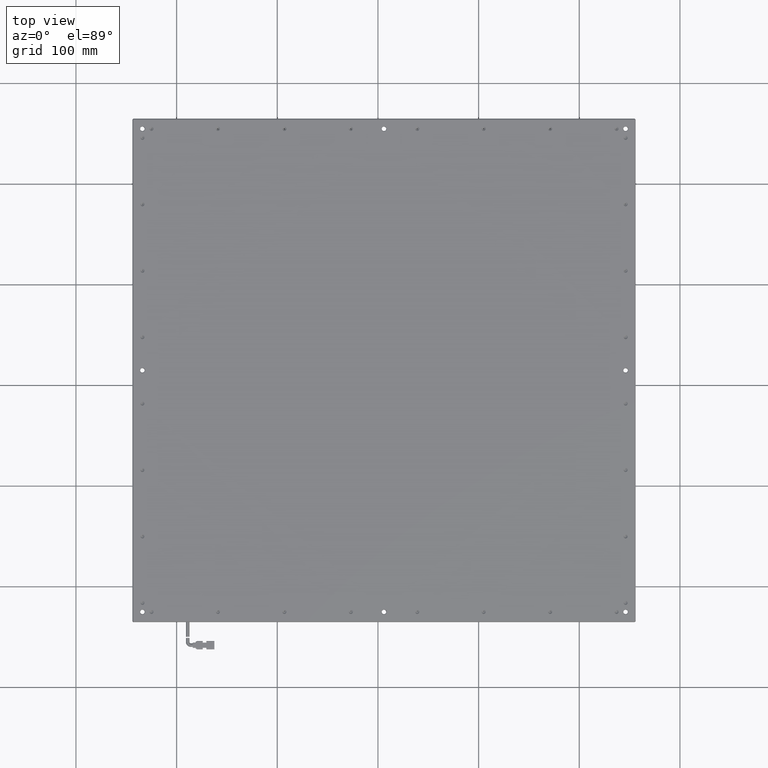
[diagram: clean part render]
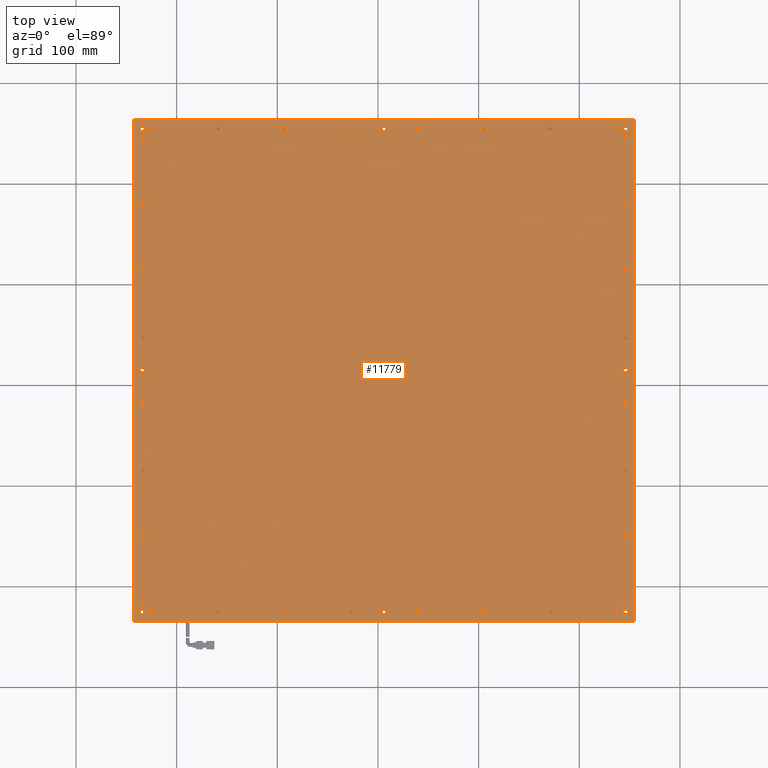
[diagram: same view with one face highlighted and labeled with its STEP entity id]
A machine part, top view. The second image highlights one B-rep face of the part: STEP entity #11779.
In plain terms, the highlighted planar face has unit normal (0, 0, -1).
Its self-contained STEP definition (entity closure, byte-faithful):
#12 = FACE_BOUND ( 'NONE', #7699, .T. ) ;
#28 = CARTESIAN_POINT ( 'NONE',  ( -233.9711023082942300, -84.30258215962435000, 9.000000000009549700 ) ) ;
#61 = EDGE_LOOP ( 'NONE', ( #15893, #22353 ) ) ;
#87 = ORIENTED_EDGE ( 'NONE', *, *, #19572, .T. ) ;
#115 = AXIS2_PLACEMENT_3D ( 'NONE', #14652, #2976, #16590 ) ;
#126 = ORIENTED_EDGE ( 'NONE', *, *, #25110, .T. ) ;
#152 = VERTEX_POINT ( 'NONE', #16185 ) ;
#180 = EDGE_CURVE ( 'NONE', #19854, #22678, #726, .T. ) ;
#212 = CARTESIAN_POINT ( 'NONE',  ( 3.278897691770726700, 254.6974178403756400, 8.999999999952706300 ) ) ;
#213 = CARTESIAN_POINT ( 'NONE',  ( 246.0288976917057700, 254.6974178403756400, 9.000000000009549700 ) ) ;
#276 = CARTESIAN_POINT ( 'NONE',  ( 256.0288976917057700, -234.3025821596243600, 9.000000000000000000 ) ) ;
#369 = CIRCLE ( 'NONE', #7320, 2.000000000018709000 ) ;
#383 = CIRCLE ( 'NONE', #16319, 2.000000000000390400 ) ;
#449 = VERTEX_POINT ( 'NONE', #19651 ) ;
#476 = EDGE_CURVE ( 'NONE', #19554, #686, #9968, .T. ) ;
#517 = ORIENTED_EDGE ( 'NONE', *, *, #23402, .T. ) ;
#553 = EDGE_CURVE ( 'NONE', #3909, #18821, #21876, .T. ) ;
#586 = VERTEX_POINT ( 'NONE', #3933 ) ;
#588 = DIRECTION ( 'NONE',  ( 1.000000000000000000, 0.0000000000000000000, 0.0000000000000000000 ) ) ;
#664 = EDGE_CURVE ( 'NONE', #19268, #15333, #10319, .T. ) ;
#676 = CIRCLE ( 'NONE', #9331, 1.999999999994006600 ) ;
#686 = VERTEX_POINT ( 'NONE', #23871 ) ;
#712 = EDGE_LOOP ( 'NONE', ( #15051, #16941 ) ) ;
#726 = CIRCLE ( 'NONE', #1712, 2.000000000055846000 ) ;
#759 = ORIENTED_EDGE ( 'NONE', *, *, #2359, .T. ) ;
#780 = CARTESIAN_POINT ( 'NONE',  ( 243.2788976917617800, 14.69741784037564800, 9.000000000009549700 ) ) ;
#803 = DIRECTION ( 'NONE',  ( -0.0000000000000000000, 0.0000000000000000000, -1.000000000000000000 ) ) ;
#828 = CIRCLE ( 'NONE', #24143, 2.000000000000390400 ) ;
#840 = EDGE_CURVE ( 'NONE', #3242, #23418, #10029, .T. ) ;
#892 = CARTESIAN_POINT ( 'NONE',  ( -222.9711023082792800, 254.6974178403756400, 9.000000000009549700 ) ) ;
#917 = FACE_BOUND ( 'NONE', #21830, .T. ) ;
#953 = CARTESIAN_POINT ( 'NONE',  ( 255.0288976917057900, 264.6974178403756400, 9.000000000000000000 ) ) ;
#1017 = DIRECTION ( 'NONE',  ( 1.000000000000000000, 0.0000000000000000000, 0.0000000000000000000 ) ) ;
#1031 = CARTESIAN_POINT ( 'NONE',  ( -231.9711023082938400, 47.69741784037565000, 9.000000000009549700 ) ) ;
#1189 = DIRECTION ( 'NONE',  ( 0.0000000000000000000, 1.000000000000000000, 0.0000000000000000000 ) ) ;
#1216 = CARTESIAN_POINT ( 'NONE',  ( 246.0288976917056200, 113.6974178403756500, 9.000000000009549700 ) ) ;
#1256 = CARTESIAN_POINT ( 'NONE',  ( -92.97110230829422100, 254.6974178403756400, 9.000000000009549700 ) ) ;
#1321 = EDGE_CURVE ( 'NONE', #4982, #4235, #8415, .T. ) ;
#1330 = CIRCLE ( 'NONE', #11755, 2.749999999943991500 ) ;
#1342 = AXIS2_PLACEMENT_3D ( 'NONE', #4769, #6706, #4006 ) ;
#1365 = VERTEX_POINT ( 'NONE', #1031 ) ;
#1386 = EDGE_CURVE ( 'NONE', #18964, #2593, #22817, .T. ) ;
#1440 = CARTESIAN_POINT ( 'NONE',  ( -224.9711023082942300, -225.3025821596243400, 9.000000000009549700 ) ) ;
#1479 = EDGE_CURVE ( 'NONE', #23206, #22562, #18490, .T. ) ;
#1489 = DIRECTION ( 'NONE',  ( 1.000000000000000000, 0.0000000000000000000, 0.0000000000000000000 ) ) ;
#1517 = CIRCLE ( 'NONE', #7662, 2.000000000018709000 ) ;
#1546 = EDGE_CURVE ( 'NONE', #586, #24184, #23988, .T. ) ;
#1548 = FACE_BOUND ( 'NONE', #6016, .T. ) ;
#1581 = DIRECTION ( 'NONE',  ( -0.0000000000000000000, 0.0000000000000000000, -1.000000000000000000 ) ) ;
#1587 = ORIENTED_EDGE ( 'NONE', *, *, #10608, .T. ) ;
#1605 = CARTESIAN_POINT ( 'NONE',  ( -222.9711023082792800, -225.3025821596243400, 9.000000000009549700 ) ) ;
#1611 = ORIENTED_EDGE ( 'NONE', *, *, #7985, .T. ) ;
#1672 = EDGE_CURVE ( 'NONE', #12902, #14408, #24277, .T. ) ;
#1709 = CARTESIAN_POINT ( 'NONE',  ( 37.02889769168085400, -225.3025821596243400, 9.000000000009549700 ) ) ;
#1712 = AXIS2_PLACEMENT_3D ( 'NONE', #16866, #17026, #16931 ) ;
#1719 = DIRECTION ( 'NONE',  ( 1.000000000000000000, 0.0000000000000000000, 0.0000000000000000000 ) ) ;
#1728 = CIRCLE ( 'NONE', #16437, 2.000000000018709000 ) ;
#1736 = CARTESIAN_POINT ( 'NONE',  ( -242.9711023082942600, 263.6974178403756400, 9.000000000000000000 ) ) ;
#1755 = EDGE_CURVE ( 'NONE', #10141, #2763, #6860, .T. ) ;
#1766 = CARTESIAN_POINT ( 'NONE',  ( 105.0288976917057800, -225.3025821596243400, 9.000000000009549700 ) ) ;
#1824 = CARTESIAN_POINT ( 'NONE',  ( 248.0288976917243500, 179.6974178403756600, 9.000000000009549700 ) ) ;
#1844 = ORIENTED_EDGE ( 'NONE', *, *, #476, .T. ) ;
#1848 = VERTEX_POINT ( 'NONE', #15944 ) ;
#1854 = EDGE_CURVE ( 'NONE', #23732, #19329, #24593, .T. ) ;
#1857 = CARTESIAN_POINT ( 'NONE',  ( 248.0288976917243500, -216.3025821596243600, 9.000000000009549700 ) ) ;
#1885 = EDGE_LOOP ( 'NONE', ( #10165, #3464 ) ) ;
#1927 = CARTESIAN_POINT ( 'NONE',  ( -233.9711023082943800, -225.3025821596243400, 9.000000000066393100 ) ) ;
#1998 = CARTESIAN_POINT ( 'NONE',  ( -156.9711023083052100, 254.6974178403756400, 9.000000000009549700 ) ) ;
#2009 = VERTEX_POINT ( 'NONE', #7878 ) ;
#2049 = DIRECTION ( 'NONE',  ( 1.000000000000000000, 0.0000000000000000000, 0.0000000000000000000 ) ) ;
#2113 = EDGE_CURVE ( 'NONE', #24132, #24636, #19415, .T. ) ;
#2198 = FACE_BOUND ( 'NONE', #712, .T. ) ;
#2210 = DIRECTION ( 'NONE',  ( -0.0000000000000000000, -0.0000000000000000000, -1.000000000000000000 ) ) ;
#2222 = VERTEX_POINT ( 'NONE', #20128 ) ;
#2233 = DIRECTION ( 'NONE',  ( 1.000000000000000000, 0.0000000000000000000, 0.0000000000000000000 ) ) ;
#2277 = CIRCLE ( 'NONE', #4735, 2.000000000000390400 ) ;
#2285 = EDGE_LOOP ( 'NONE', ( #15335, #19938 ) ) ;
#2288 = DIRECTION ( 'NONE',  ( -0.0000000000000000000, 0.0000000000000000000, -1.000000000000000000 ) ) ;
#2298 = CIRCLE ( 'NONE', #18716, 2.000000000018709000 ) ;
#2312 = VERTEX_POINT ( 'NONE', #24190 ) ;
#2359 = EDGE_CURVE ( 'NONE', #22562, #23206, #13547, .T. ) ;
#2381 = ORIENTED_EDGE ( 'NONE', *, *, #1321, .T. ) ;
#2423 = CARTESIAN_POINT ( 'NONE',  ( -158.9711023082942300, 254.6974178403756400, 9.000000000009549700 ) ) ;
#2475 = AXIS2_PLACEMENT_3D ( 'NONE', #11502, #25166, #13435 ) ;
#2536 = ORIENTED_EDGE ( 'NONE', *, *, #3341, .T. ) ;
#2548 = DIRECTION ( 'NONE',  ( -0.0000000000000000000, 0.0000000000000000000, -1.000000000000000000 ) ) ;
#2587 = DIRECTION ( 'NONE',  ( -0.0000000000000000000, 0.0000000000000000000, -1.000000000000000000 ) ) ;
#2593 = VERTEX_POINT ( 'NONE', #212 ) ;
#2612 = CARTESIAN_POINT ( 'NONE',  ( -233.9711023082942300, 245.6974178403756600, 9.000000000009549700 ) ) ;
#2656 = CARTESIAN_POINT ( 'NONE',  ( -231.9711023082938400, -150.3025821596243600, 9.000000000009549700 ) ) ;
#2686 = EDGE_CURVE ( 'NONE', #686, #19554, #5331, .T. ) ;
#2711 = ORIENTED_EDGE ( 'NONE', *, *, #13530, .T. ) ;
#2744 = AXIS2_PLACEMENT_3D ( 'NONE', #18552, #6861, #20528 ) ;
#2750 = CARTESIAN_POINT ( 'NONE',  ( -233.9711023082942300, -18.30258215962435400, 9.000000000009549700 ) ) ;
#2763 = VERTEX_POINT ( 'NONE', #22580 ) ;
#2802 = FACE_BOUND ( 'NONE', #14148, .T. ) ;
#2809 = CIRCLE ( 'NONE', #8229, 2.000000000000390400 ) ;
#2815 = DIRECTION ( 'NONE',  ( -0.0000000000000000000, 0.0000000000000000000, -1.000000000000000000 ) ) ;
#2914 = DIRECTION ( 'NONE',  ( -0.0000000000000000000, 0.0000000000000000000, -1.000000000000000000 ) ) ;
#2929 = CARTESIAN_POINT ( 'NONE',  ( -233.9711023082942300, 179.6974178403756600, 9.000000000009549700 ) ) ;
#2976 = DIRECTION ( 'NONE',  ( -0.0000000000000000000, 0.0000000000000000000, -1.000000000000000000 ) ) ;
#3012 = DIRECTION ( 'NONE',  ( -0.0000000000000000000, 0.0000000000000000000, -1.000000000000000000 ) ) ;
#3019 = ORIENTED_EDGE ( 'NONE', *, *, #18360, .T. ) ;
#3050 = CIRCLE ( 'NONE', #21614, 2.749999999925950800 ) ;
#3061 = CARTESIAN_POINT ( 'NONE',  ( -26.97110230829422100, -225.3025821596243400, 9.000000000009549700 ) ) ;
#3077 = CARTESIAN_POINT ( 'NONE',  ( -233.9711023082943800, 254.6974178403756400, 9.000000000066393100 ) ) ;
#3078 = EDGE_LOOP ( 'NONE', ( #17247, #23512 ) ) ;
#3195 = DIRECTION ( 'NONE',  ( -0.0000000000000000000, 0.0000000000000000000, -1.000000000000000000 ) ) ;
#3241 = CIRCLE ( 'NONE', #14005, 2.000000000029922300 ) ;
#3242 = VERTEX_POINT ( 'NONE', #4106 ) ;
#3248 = DIRECTION ( 'NONE',  ( 1.000000000000000000, 0.0000000000000000000, 0.0000000000000000000 ) ) ;
#3279 = DIRECTION ( 'NONE',  ( 1.000000000000000000, 0.0000000000000000000, 0.0000000000000000000 ) ) ;
#3341 = EDGE_CURVE ( 'NONE', #16314, #13766, #12533, .T. ) ;
#3360 = LINE ( 'NONE', #3662, #13106 ) ;
#3368 = AXIS2_PLACEMENT_3D ( 'NONE', #10817, #10959, #11302 ) ;
#3384 = EDGE_CURVE ( 'NONE', #22707, #9996, #23859, .T. ) ;
#3387 = EDGE_LOOP ( 'NONE', ( #2381, #14582 ) ) ;
#3430 = FACE_BOUND ( 'NONE', #19985, .T. ) ;
#3442 = DIRECTION ( 'NONE',  ( 1.000000000000000000, 0.0000000000000000000, 0.0000000000000000000 ) ) ;
#3457 = AXIS2_PLACEMENT_3D ( 'NONE', #8336, #22037, #10303 ) ;
#3464 = ORIENTED_EDGE ( 'NONE', *, *, #9185, .T. ) ;
#3531 = EDGE_CURVE ( 'NONE', #23418, #8603, #3360, .T. ) ;
#3566 = CIRCLE ( 'NONE', #6271, 2.000000000000390400 ) ;
#3589 = ORIENTED_EDGE ( 'NONE', *, *, #7741, .T. ) ;
#3662 = CARTESIAN_POINT ( 'NONE',  ( 256.0288976917057700, 263.6974178403756400, 9.000000000000000000 ) ) ;
#3671 = AXIS2_PLACEMENT_3D ( 'NONE', #12547, #803, #14505 ) ;
#3672 = AXIS2_PLACEMENT_3D ( 'NONE', #20800, #9076, #22783 ) ;
#3687 = CARTESIAN_POINT ( 'NONE',  ( 246.0288976917056200, -216.3025821596243600, 9.000000000009549700 ) ) ;
#3692 = EDGE_CURVE ( 'NONE', #19180, #13513, #22014, .T. ) ;
#3719 = CARTESIAN_POINT ( 'NONE',  ( -231.9711023082938400, 179.6974178403756600, 9.000000000009549700 ) ) ;
#3733 = CARTESIAN_POINT ( 'NONE',  ( -233.9711023082943800, 254.6974178403756400, 9.000000000066393100 ) ) ;
#3756 = ORIENTED_EDGE ( 'NONE', *, *, #17775, .T. ) ;
#3816 = CARTESIAN_POINT ( 'NONE',  ( 246.0288976917056200, 179.6974178403756600, 9.000000000009549700 ) ) ;
#3823 = VERTEX_POINT ( 'NONE', #16572 ) ;
#3845 = EDGE_CURVE ( 'NONE', #5610, #17111, #9045, .T. ) ;
#3869 = CARTESIAN_POINT ( 'NONE',  ( -26.97110230829422100, 254.6974178403756400, 8.999999999952706300 ) ) ;
#3879 = CARTESIAN_POINT ( 'NONE',  ( 235.0288976917586300, -225.3025821596243400, 9.000000000009549700 ) ) ;
#3909 = VERTEX_POINT ( 'NONE', #24649 ) ;
#3929 = DIRECTION ( 'NONE',  ( 1.000000000000000000, 0.0000000000000000000, 0.0000000000000000000 ) ) ;
#3933 = CARTESIAN_POINT ( 'NONE',  ( 37.02889769168085400, 254.6974178403756400, 9.000000000009549700 ) ) ;
#3955 = CARTESIAN_POINT ( 'NONE',  ( 248.0288976917243500, -18.30258215962435400, 9.000000000009549700 ) ) ;
#4006 = DIRECTION ( 'NONE',  ( 1.000000000000000000, 0.0000000000000000000, 0.0000000000000000000 ) ) ;
#4029 = EDGE_CURVE ( 'NONE', #7424, #6775, #16945, .T. ) ;
#4068 = FACE_BOUND ( 'NONE', #10734, .T. ) ;
#4071 = AXIS2_PLACEMENT_3D ( 'NONE', #6996, #20656, #8916 ) ;
#4106 = CARTESIAN_POINT ( 'NONE',  ( 255.0288976917057900, -234.3025821596245100, 9.000000000000000000 ) ) ;
#4224 = CARTESIAN_POINT ( 'NONE',  ( 8.778897691640668900, 254.6974178403756400, 8.999999999952706300 ) ) ;
#4235 = VERTEX_POINT ( 'NONE', #4863 ) ;
#4251 = AXIS2_PLACEMENT_3D ( 'NONE', #9035, #9124, #9478 ) ;
#4290 = CARTESIAN_POINT ( 'NONE',  ( -226.9711023083091600, -225.3025821596243400, 9.000000000009549700 ) ) ;
#4304 = CARTESIAN_POINT ( 'NONE',  ( -235.9711023082946300, 47.69741784037565000, 9.000000000009549700 ) ) ;
#4354 = VERTEX_POINT ( 'NONE', #892 ) ;
#4355 = LINE ( 'NONE', #276, #14085 ) ;
#4394 = ORIENTED_EDGE ( 'NONE', *, *, #23391, .T. ) ;
#4399 = DIRECTION ( 'NONE',  ( 1.000000000000000000, 0.0000000000000000000, 0.0000000000000000000 ) ) ;
#4414 = CIRCLE ( 'NONE', #12554, 2.000000000014934300 ) ;
#4417 = AXIS2_PLACEMENT_3D ( 'NONE', #9943, #23613, #11892 ) ;
#4478 = ORIENTED_EDGE ( 'NONE', *, *, #553, .T. ) ;
#4479 = CIRCLE ( 'NONE', #22138, 2.749999999925950800 ) ;
#4493 = AXIS2_PLACEMENT_3D ( 'NONE', #25136, #13409, #1719 ) ;
#4501 = CIRCLE ( 'NONE', #10126, 2.000000000018709000 ) ;
#4503 = CARTESIAN_POINT ( 'NONE',  ( 105.0288976917057800, 254.6974178403756400, 9.000000000009549700 ) ) ;
#4590 = DIRECTION ( 'NONE',  ( 1.000000000000000000, 0.0000000000000000000, 0.0000000000000000000 ) ) ;
#4596 = CARTESIAN_POINT ( 'NONE',  ( -236.7211023082203400, 14.69741784037564800, 9.000000000066393100 ) ) ;
#4645 = EDGE_LOOP ( 'NONE', ( #13214, #87 ) ) ;
#4657 = EDGE_CURVE ( 'NONE', #19476, #6566, #24832, .T. ) ;
#4665 = FACE_BOUND ( 'NONE', #23294, .T. ) ;
#4701 = CARTESIAN_POINT ( 'NONE',  ( -90.97110230827429700, -225.3025821596243400, 9.000000000009549700 ) ) ;
#4731 = ORIENTED_EDGE ( 'NONE', *, *, #20754, .T. ) ;
#4735 = AXIS2_PLACEMENT_3D ( 'NONE', #20871, #9163, #22864 ) ;
#4736 = AXIS2_PLACEMENT_3D ( 'NONE', #7629, #7553, #7482 ) ;
#4740 = CARTESIAN_POINT ( 'NONE',  ( -242.9711023082943500, -234.3025821596243600, 9.000000000000000000 ) ) ;
#4769 = CARTESIAN_POINT ( 'NONE',  ( 6.028897691705757300, -225.3025821596243400, 8.999999999952706300 ) ) ;
#4778 = CIRCLE ( 'NONE', #10905, 1.999999999989010600 ) ;
#4863 = CARTESIAN_POINT ( 'NONE',  ( 103.0288976917067900, -225.3025821596243400, 9.000000000009549700 ) ) ;
#4883 = CARTESIAN_POINT ( 'NONE',  ( 246.0288976917056200, 179.6974178403756600, 9.000000000009549700 ) ) ;
#4910 = EDGE_LOOP ( 'NONE', ( #23400, #4478 ) ) ;
#4916 = DIRECTION ( 'NONE',  ( 1.000000000000000000, 0.0000000000000000000, 0.0000000000000000000 ) ) ;
#4953 = EDGE_CURVE ( 'NONE', #2009, #16905, #17142, .T. ) ;
#4982 = VERTEX_POINT ( 'NONE', #10643 ) ;
#4984 = AXIS2_PLACEMENT_3D ( 'NONE', #1256, #14961, #3279 ) ;
#5038 = CARTESIAN_POINT ( 'NONE',  ( -236.7211023082203400, -225.3025821596243400, 9.000000000066393100 ) ) ;
#5063 = DIRECTION ( 'NONE',  ( 1.000000000000000000, 0.0000000000000000000, 0.0000000000000000000 ) ) ;
#5072 = AXIS2_PLACEMENT_3D ( 'NONE', #6886, #20553, #8815 ) ;
#5081 = CIRCLE ( 'NONE', #6413, 2.000000000018709000 ) ;
#5082 = DIRECTION ( 'NONE',  ( 1.000000000000000000, 0.0000000000000000000, 0.0000000000000000000 ) ) ;
#5134 = CIRCLE ( 'NONE', #4071, 1.999999999989010600 ) ;
#5216 = CIRCLE ( 'NONE', #10598, 1.999999999989010600 ) ;
#5247 = CARTESIAN_POINT ( 'NONE',  ( 248.0288976917243500, 47.69741784037565000, 9.000000000009549700 ) ) ;
#5305 = FACE_BOUND ( 'NONE', #15422, .T. ) ;
#5331 = CIRCLE ( 'NONE', #20847, 2.000000000019930300 ) ;
#5334 = ORIENTED_EDGE ( 'NONE', *, *, #6036, .T. ) ;
#5430 = CARTESIAN_POINT ( 'NONE',  ( -233.9711023082942300, -84.30258215962435000, 9.000000000009549700 ) ) ;
#5453 = VERTEX_POINT ( 'NONE', #24809 ) ;
#5462 = ORIENTED_EDGE ( 'NONE', *, *, #1672, .T. ) ;
#5581 = CARTESIAN_POINT ( 'NONE',  ( -235.9711023082946300, -216.3025821596243600, 9.000000000009549700 ) ) ;
#5588 = DIRECTION ( 'NONE',  ( -0.0000000000000000000, 0.0000000000000000000, -1.000000000000000000 ) ) ;
#5610 = VERTEX_POINT ( 'NONE', #25230 ) ;
#5665 = DIRECTION ( 'NONE',  ( 1.000000000000000000, 0.0000000000000000000, 0.0000000000000000000 ) ) ;
#5708 = DIRECTION ( 'NONE',  ( 1.000000000000000000, 0.0000000000000000000, 0.0000000000000000000 ) ) ;
#5779 = VERTEX_POINT ( 'NONE', #18642 ) ;
#5799 = DIRECTION ( 'NONE',  ( 1.000000000000000000, 0.0000000000000000000, 0.0000000000000000000 ) ) ;
#5843 = DIRECTION ( 'NONE',  ( 1.000000000000000000, 0.0000000000000000000, 0.0000000000000000000 ) ) ;
#5860 = DIRECTION ( 'NONE',  ( -0.0000000000000000000, -0.0000000000000000000, -1.000000000000000000 ) ) ;
#5882 = EDGE_CURVE ( 'NONE', #5779, #2312, #4501, .T. ) ;
#5888 = AXIS2_PLACEMENT_3D ( 'NONE', #22007, #10275, #23951 ) ;
#5905 = FACE_BOUND ( 'NONE', #10624, .T. ) ;
#6016 = EDGE_LOOP ( 'NONE', ( #21449, #13150 ) ) ;
#6028 = CARTESIAN_POINT ( 'NONE',  ( 244.0288976916869200, -150.3025821596243600, 9.000000000009549700 ) ) ;
#6036 = EDGE_CURVE ( 'NONE', #18697, #11668, #15756, .T. ) ;
#6061 = VERTEX_POINT ( 'NONE', #6028 ) ;
#6066 = DIRECTION ( 'NONE',  ( -0.0000000000000000000, 0.0000000000000000000, -1.000000000000000000 ) ) ;
#6083 = DIRECTION ( 'NONE',  ( -0.0000000000000000000, -0.0000000000000000000, -1.000000000000000000 ) ) ;
#6177 = FACE_BOUND ( 'NONE', #8346, .T. ) ;
#6191 = ORIENTED_EDGE ( 'NONE', *, *, #13123, .T. ) ;
#6266 = CIRCLE ( 'NONE', #18503, 2.749999999925950800 ) ;
#6271 = AXIS2_PLACEMENT_3D ( 'NONE', #14599, #2914, #16528 ) ;
#6384 = CIRCLE ( 'NONE', #18396, 2.000000000000390400 ) ;
#6404 = CARTESIAN_POINT ( 'NONE',  ( -235.9711023082946300, -84.30258215962435000, 9.000000000009549700 ) ) ;
#6413 = AXIS2_PLACEMENT_3D ( 'NONE', #3816, #17456, #5799 ) ;
#6446 = DIRECTION ( 'NONE',  ( 1.000000000000000000, 0.0000000000000000000, 0.0000000000000000000 ) ) ;
#6523 = ORIENTED_EDGE ( 'NONE', *, *, #17743, .T. ) ;
#6566 = VERTEX_POINT ( 'NONE', #12026 ) ;
#6644 = DIRECTION ( 'NONE',  ( -0.0000000000000000000, 0.0000000000000000000, -1.000000000000000000 ) ) ;
#6706 = DIRECTION ( 'NONE',  ( -0.0000000000000000000, 0.0000000000000000000, -1.000000000000000000 ) ) ;
#6775 = VERTEX_POINT ( 'NONE', #12617 ) ;
#6782 = FACE_BOUND ( 'NONE', #13284, .T. ) ;
#6824 = DIRECTION ( 'NONE',  ( 1.000000000000000000, 0.0000000000000000000, 0.0000000000000000000 ) ) ;
#6853 = DIRECTION ( 'NONE',  ( 1.000000000000000000, 0.0000000000000000000, 0.0000000000000000000 ) ) ;
#6860 = CIRCLE ( 'NONE', #4736, 2.749999999943991500 ) ;
#6861 = DIRECTION ( 'NONE',  ( -0.0000000000000000000, 0.0000000000000000000, -1.000000000000000000 ) ) ;
#6879 = ORIENTED_EDGE ( 'NONE', *, *, #3384, .T. ) ;
#6886 = CARTESIAN_POINT ( 'NONE',  ( 246.0288976917056200, -150.3025821596243600, 9.000000000009549700 ) ) ;
#6890 = CIRCLE ( 'NONE', #17410, 2.749999999943991500 ) ;
#6929 = CARTESIAN_POINT ( 'NONE',  ( 173.0288976917357200, 254.6974178403756400, 9.000000000066393100 ) ) ;
#6944 = DIRECTION ( 'NONE',  ( -0.0000000000000000000, 0.0000000000000000000, -1.000000000000000000 ) ) ;
#6963 = AXIS2_PLACEMENT_3D ( 'NONE', #10205, #23888, #12175 ) ;
#6996 = CARTESIAN_POINT ( 'NONE',  ( -158.9711023082942300, 254.6974178403756400, 9.000000000009549700 ) ) ;
#7028 = ORIENTED_EDGE ( 'NONE', *, *, #13635, .T. ) ;
#7031 = CARTESIAN_POINT ( 'NONE',  ( 41.02889769173071200, 254.6974178403756400, 9.000000000009549700 ) ) ;
#7038 = CARTESIAN_POINT ( 'NONE',  ( 237.0288976917057900, -225.3025821596243400, 9.000000000009549700 ) ) ;
#7059 = AXIS2_PLACEMENT_3D ( 'NONE', #4883, #18513, #6824 ) ;
#7089 = CIRCLE ( 'NONE', #6963, 2.000000000018709000 ) ;
#7171 = ORIENTED_EDGE ( 'NONE', *, *, #3531, .T. ) ;
#7232 = CARTESIAN_POINT ( 'NONE',  ( -160.9711023082832400, -225.3025821596243400, 9.000000000009549700 ) ) ;
#7238 = VERTEX_POINT ( 'NONE', #7897 ) ;
#7320 = AXIS2_PLACEMENT_3D ( 'NONE', #22197, #10456, #24149 ) ;
#7374 = DIRECTION ( 'NONE',  ( 1.000000000000000000, 0.0000000000000000000, 0.0000000000000000000 ) ) ;
#7424 = VERTEX_POINT ( 'NONE', #2656 ) ;
#7430 = FACE_BOUND ( 'NONE', #8090, .T. ) ;
#7442 = ORIENTED_EDGE ( 'NONE', *, *, #14623, .T. ) ;
#7465 = VERTEX_POINT ( 'NONE', #4740 ) ;
#7482 = DIRECTION ( 'NONE',  ( 1.000000000000000000, 0.0000000000000000000, 0.0000000000000000000 ) ) ;
#7485 = ORIENTED_EDGE ( 'NONE', *, *, #8007, .T. ) ;
#7502 = AXIS2_PLACEMENT_3D ( 'NONE', #10261, #23942, #12225 ) ;
#7553 = DIRECTION ( 'NONE',  ( -0.0000000000000000000, 0.0000000000000000000, -1.000000000000000000 ) ) ;
#7629 = CARTESIAN_POINT ( 'NONE',  ( 246.0288976917057700, 254.6974178403756400, 9.000000000009549700 ) ) ;
#7655 = EDGE_CURVE ( 'NONE', #6775, #7424, #383, .T. ) ;
#7659 = CARTESIAN_POINT ( 'NONE',  ( 171.0288976917057900, -225.3025821596243400, 9.000000000066393100 ) ) ;
#7662 = AXIS2_PLACEMENT_3D ( 'NONE', #24461, #12762, #1017 ) ;
#7699 = EDGE_LOOP ( 'NONE', ( #17214, #4731 ) ) ;
#7728 = ORIENTED_EDGE ( 'NONE', *, *, #24767, .T. ) ;
#7741 = EDGE_CURVE ( 'NONE', #24887, #1848, #676, .T. ) ;
#7792 = CARTESIAN_POINT ( 'NONE',  ( -233.9711023082942300, -216.3025821596243600, 9.000000000009549700 ) ) ;
#7827 = AXIS2_PLACEMENT_3D ( 'NONE', #20491, #8757, #22477 ) ;
#7878 = CARTESIAN_POINT ( 'NONE',  ( -24.97110230830021400, -225.3025821596243400, 9.000000000009549700 ) ) ;
#7897 = CARTESIAN_POINT ( 'NONE',  ( 169.0288976916758700, -225.3025821596243400, 9.000000000066393100 ) ) ;
#7985 = EDGE_CURVE ( 'NONE', #11633, #24947, #12609, .T. ) ;
#8004 = AXIS2_PLACEMENT_3D ( 'NONE', #7038, #6944, #6853 ) ;
#8005 = CIRCLE ( 'NONE', #10062, 2.000000000000390400 ) ;
#8007 = EDGE_CURVE ( 'NONE', #15920, #24824, #15346, .T. ) ;
#8010 = FACE_BOUND ( 'NONE', #14461, .T. ) ;
#8021 = CARTESIAN_POINT ( 'NONE',  ( -28.97110230828822700, -225.3025821596243400, 9.000000000009549700 ) ) ;
#8028 = CIRCLE ( 'NONE', #17448, 1.999999999994006600 ) ;
#8090 = EDGE_LOOP ( 'NONE', ( #11698, #12973 ) ) ;
#8121 = AXIS2_PLACEMENT_3D ( 'NONE', #2750, #2587, #24658 ) ;
#8229 = AXIS2_PLACEMENT_3D ( 'NONE', #2929, #16543, #4916 ) ;
#8237 = EDGE_CURVE ( 'NONE', #3823, #12764, #16986, .T. ) ;
#8242 = AXIS2_PLACEMENT_3D ( 'NONE', #5430, #19043, #7374 ) ;
#8286 = DIRECTION ( 'NONE',  ( -0.0000000000000000000, -0.0000000000000000000, -1.000000000000000000 ) ) ;
#8294 = AXIS2_PLACEMENT_3D ( 'NONE', #13429, #10603, #13064 ) ;
#8322 = EDGE_LOOP ( 'NONE', ( #10813, #759 ) ) ;
#8327 = DIRECTION ( 'NONE',  ( 1.000000000000000000, 0.0000000000000000000, 0.0000000000000000000 ) ) ;
#8336 = CARTESIAN_POINT ( 'NONE',  ( 246.0288976917056200, 113.6974178403756500, 9.000000000009549700 ) ) ;
#8346 = EDGE_LOOP ( 'NONE', ( #3019, #7485 ) ) ;
#8407 = VERTEX_POINT ( 'NONE', #5038 ) ;
#8415 = CIRCLE ( 'NONE', #8766, 1.999999999999002600 ) ;
#8488 = ORIENTED_EDGE ( 'NONE', *, *, #3845, .T. ) ;
#8497 = CARTESIAN_POINT ( 'NONE',  ( 171.0288976917057900, -225.3025821596243400, 9.000000000066393100 ) ) ;
#8596 = FACE_BOUND ( 'NONE', #11389, .T. ) ;
#8603 = VERTEX_POINT ( 'NONE', #1736 ) ;
#8609 = EDGE_LOOP ( 'NONE', ( #22033, #24435, #7171, #15645 ) ) ;
#8652 = EDGE_CURVE ( 'NONE', #24947, #11633, #5081, .T. ) ;
#8738 = PLANE ( 'NONE',  #15595 ) ;
#8757 = DIRECTION ( 'NONE',  ( -0.0000000000000000000, 0.0000000000000000000, -1.000000000000000000 ) ) ;
#8766 = AXIS2_PLACEMENT_3D ( 'NONE', #1766, #1581, #1489 ) ;
#8806 = EDGE_CURVE ( 'NONE', #24636, #24132, #4479, .T. ) ;
#8815 = DIRECTION ( 'NONE',  ( 1.000000000000000000, 0.0000000000000000000, 0.0000000000000000000 ) ) ;
#8842 = CARTESIAN_POINT ( 'NONE',  ( 246.0288976917057700, -225.3025821596243400, 9.000000000009549700 ) ) ;
#8916 = DIRECTION ( 'NONE',  ( 1.000000000000000000, 0.0000000000000000000, 0.0000000000000000000 ) ) ;
#8943 = ORIENTED_EDGE ( 'NONE', *, *, #10631, .T. ) ;
#9035 = CARTESIAN_POINT ( 'NONE',  ( -233.9711023082942300, -216.3025821596243600, 9.000000000009549700 ) ) ;
#9045 = CIRCLE ( 'NONE', #20882, 2.749999999943991500 ) ;
#9076 = DIRECTION ( 'NONE',  ( -0.0000000000000000000, -0.0000000000000000000, -1.000000000000000000 ) ) ;
#9104 = CARTESIAN_POINT ( 'NONE',  ( -233.9711023082943800, -225.3025821596243400, 9.000000000066393100 ) ) ;
#9124 = DIRECTION ( 'NONE',  ( -0.0000000000000000000, 0.0000000000000000000, -1.000000000000000000 ) ) ;
#9152 = CIRCLE ( 'NONE', #11922, 1.999999999947155200 ) ;
#9163 = DIRECTION ( 'NONE',  ( -0.0000000000000000000, 0.0000000000000000000, -1.000000000000000000 ) ) ;
#9181 = CARTESIAN_POINT ( 'NONE',  ( 246.0288976917057700, 14.69741784037564800, 9.000000000009549700 ) ) ;
#9185 = EDGE_CURVE ( 'NONE', #12453, #24463, #23109, .T. ) ;
#9235 = FACE_BOUND ( 'NONE', #13475, .T. ) ;
#9331 = AXIS2_PLACEMENT_3D ( 'NONE', #3869, #17503, #5843 ) ;
#9418 = EDGE_CURVE ( 'NONE', #1848, #24887, #22456, .T. ) ;
#9421 = VECTOR ( 'NONE', #1189, 1000.000000000000000 ) ;
#9478 = DIRECTION ( 'NONE',  ( 1.000000000000000000, 0.0000000000000000000, 0.0000000000000000000 ) ) ;
#9487 = CARTESIAN_POINT ( 'NONE',  ( -160.9711023082832400, 254.6974178403756400, 9.000000000009549700 ) ) ;
#9511 = DIRECTION ( 'NONE',  ( -0.0000000000000000000, 0.0000000000000000000, -1.000000000000000000 ) ) ;
#9521 = DIRECTION ( 'NONE',  ( -1.000000000000000000, -0.0000000000000000000, -0.0000000000000000000 ) ) ;
#9639 = DIRECTION ( 'NONE',  ( 1.000000000000000000, 0.0000000000000000000, 0.0000000000000000000 ) ) ;
#9729 = ORIENTED_EDGE ( 'NONE', *, *, #25370, .T. ) ;
#9759 = DIRECTION ( 'NONE',  ( 1.000000000000000000, 0.0000000000000000000, 0.0000000000000000000 ) ) ;
#9764 = EDGE_CURVE ( 'NONE', #18821, #3909, #2809, .T. ) ;
#9864 = FACE_BOUND ( 'NONE', #4645, .T. ) ;
#9871 = DIRECTION ( 'NONE',  ( -0.0000000000000000000, 0.0000000000000000000, -1.000000000000000000 ) ) ;
#9899 = CARTESIAN_POINT ( 'NONE',  ( 239.0288976916529600, -225.3025821596243400, 9.000000000009549700 ) ) ;
#9943 = CARTESIAN_POINT ( 'NONE',  ( -158.9711023082942300, -225.3025821596243400, 9.000000000009549700 ) ) ;
#9968 = CIRCLE ( 'NONE', #3368, 2.000000000019930300 ) ;
#9988 = CARTESIAN_POINT ( 'NONE',  ( 6.028897691705757300, -225.3025821596243400, 8.999999999952706300 ) ) ;
#9996 = VERTEX_POINT ( 'NONE', #1605 ) ;
#10029 = LINE ( 'NONE', #953, #9421 ) ;
#10062 = AXIS2_PLACEMENT_3D ( 'NONE', #11398, #25086, #13358 ) ;
#10068 = DIRECTION ( 'NONE',  ( 1.000000000000000000, -0.0000000000000000000, 0.0000000000000000000 ) ) ;
#10085 = AXIS2_PLACEMENT_3D ( 'NONE', #7792, #21477, #9759 ) ;
#10121 = VERTEX_POINT ( 'NONE', #11949 ) ;
#10126 = AXIS2_PLACEMENT_3D ( 'NONE', #11459, #25135, #13406 ) ;
#10141 = VERTEX_POINT ( 'NONE', #13969 ) ;
#10165 = ORIENTED_EDGE ( 'NONE', *, *, #16901, .T. ) ;
#10172 = AXIS2_PLACEMENT_3D ( 'NONE', #17526, #5860, #19534 ) ;
#10205 = CARTESIAN_POINT ( 'NONE',  ( 246.0288976917056200, -216.3025821596243600, 9.000000000009549700 ) ) ;
#10213 = EDGE_LOOP ( 'NONE', ( #24244, #3756 ) ) ;
#10261 = CARTESIAN_POINT ( 'NONE',  ( 39.02889769170577900, -225.3025821596243400, 9.000000000009549700 ) ) ;
#10275 = DIRECTION ( 'NONE',  ( -0.0000000000000000000, 0.0000000000000000000, -1.000000000000000000 ) ) ;
#10303 = DIRECTION ( 'NONE',  ( 1.000000000000000000, 0.0000000000000000000, 0.0000000000000000000 ) ) ;
#10319 = CIRCLE ( 'NONE', #8121, 2.000000000000390400 ) ;
#10450 = DIRECTION ( 'NONE',  ( 1.000000000000000000, 0.0000000000000000000, 0.0000000000000000000 ) ) ;
#10452 = ORIENTED_EDGE ( 'NONE', *, *, #1546, .T. ) ;
#10456 = DIRECTION ( 'NONE',  ( -0.0000000000000000000, -0.0000000000000000000, -1.000000000000000000 ) ) ;
#10589 = EDGE_CURVE ( 'NONE', #2593, #18964, #13696, .T. ) ;
#10598 = AXIS2_PLACEMENT_3D ( 'NONE', #22872, #11117, #24791 ) ;
#10603 = DIRECTION ( 'NONE',  ( -0.0000000000000000000, 0.0000000000000000000, -1.000000000000000000 ) ) ;
#10608 = EDGE_CURVE ( 'NONE', #13766, #16314, #18934, .T. ) ;
#10624 = EDGE_LOOP ( 'NONE', ( #22732, #22106 ) ) ;
#10631 = EDGE_CURVE ( 'NONE', #10121, #152, #828, .T. ) ;
#10643 = CARTESIAN_POINT ( 'NONE',  ( 107.0288976917047800, -225.3025821596243400, 9.000000000009549700 ) ) ;
#10693 = EDGE_CURVE ( 'NONE', #14258, #17357, #6384, .T. ) ;
#10734 = EDGE_LOOP ( 'NONE', ( #10907, #126 ) ) ;
#10767 = AXIS2_PLACEMENT_3D ( 'NONE', #1216, #14925, #3248 ) ;
#10786 = CARTESIAN_POINT ( 'NONE',  ( 256.0288976917057700, 264.6974178403756400, 9.000000000000000000 ) ) ;
#10787 = CARTESIAN_POINT ( 'NONE',  ( -94.97110230837100200, 254.6974178403756400, 9.000000000009549700 ) ) ;
#10810 = DIRECTION ( 'NONE',  ( 1.000000000000000000, 0.0000000000000000000, 0.0000000000000000000 ) ) ;
#10813 = ORIENTED_EDGE ( 'NONE', *, *, #1479, .T. ) ;
#10817 = CARTESIAN_POINT ( 'NONE',  ( -92.97110230829422100, -225.3025821596243400, 9.000000000009549700 ) ) ;
#10872 = CARTESIAN_POINT ( 'NONE',  ( 255.0288976917057900, 263.6974178403756400, 9.000000000000000000 ) ) ;
#10905 = AXIS2_PLACEMENT_3D ( 'NONE', #2423, #16058, #4399 ) ;
#10907 = ORIENTED_EDGE ( 'NONE', *, *, #24743, .T. ) ;
#10933 = DIRECTION ( 'NONE',  ( -0.0000000000000000000, 0.0000000000000000000, -1.000000000000000000 ) ) ;
#10959 = DIRECTION ( 'NONE',  ( -0.0000000000000000000, 0.0000000000000000000, -1.000000000000000000 ) ) ;
#11046 = FACE_BOUND ( 'NONE', #11529, .T. ) ;
#11050 = DIRECTION ( 'NONE',  ( 1.000000000000000000, 0.0000000000000000000, 0.0000000000000000000 ) ) ;
#11117 = DIRECTION ( 'NONE',  ( -0.0000000000000000000, 0.0000000000000000000, -1.000000000000000000 ) ) ;
#11138 = CARTESIAN_POINT ( 'NONE',  ( 248.7788976916497700, -225.3025821596243400, 9.000000000009549700 ) ) ;
#11302 = DIRECTION ( 'NONE',  ( 1.000000000000000000, 0.0000000000000000000, 0.0000000000000000000 ) ) ;
#11352 = DIRECTION ( 'NONE',  ( -0.0000000000000000000, 0.0000000000000000000, -1.000000000000000000 ) ) ;
#11353 = FACE_BOUND ( 'NONE', #16045, .T. ) ;
#11389 = EDGE_LOOP ( 'NONE', ( #24088, #7028 ) ) ;
#11398 = CARTESIAN_POINT ( 'NONE',  ( -233.9711023082942300, 47.69741784037565000, 9.000000000009549700 ) ) ;
#11405 = ORIENTED_EDGE ( 'NONE', *, *, #17874, .T. ) ;
#11435 = VERTEX_POINT ( 'NONE', #19018 ) ;
#11459 = CARTESIAN_POINT ( 'NONE',  ( 246.0288976917056200, 245.6974178403756600, 9.000000000009549700 ) ) ;
#11472 = EDGE_LOOP ( 'NONE', ( #5462, #12854 ) ) ;
#11473 = EDGE_CURVE ( 'NONE', #1365, #23936, #8005, .T. ) ;
#11502 = CARTESIAN_POINT ( 'NONE',  ( -92.97110230829422100, 254.6974178403756400, 9.000000000009549700 ) ) ;
#11529 = EDGE_LOOP ( 'NONE', ( #6523, #4394 ) ) ;
#11534 = EDGE_CURVE ( 'NONE', #7238, #25308, #16510, .T. ) ;
#11540 = CIRCLE ( 'NONE', #4493, 2.000000000014934300 ) ;
#11574 = EDGE_CURVE ( 'NONE', #12369, #16842, #7089, .T. ) ;
#11618 = DIRECTION ( 'NONE',  ( 1.000000000000000000, 0.0000000000000000000, 0.0000000000000000000 ) ) ;
#11633 = VERTEX_POINT ( 'NONE', #21943 ) ;
#11668 = VERTEX_POINT ( 'NONE', #14277 ) ;
#11698 = ORIENTED_EDGE ( 'NONE', *, *, #1854, .T. ) ;
#11739 = DIRECTION ( 'NONE',  ( -0.0000000000000000000, -0.0000000000000000000, -1.000000000000000000 ) ) ;
#11755 = AXIS2_PLACEMENT_3D ( 'NONE', #213, #13896, #2233 ) ;
#11768 = ORIENTED_EDGE ( 'NONE', *, *, #664, .T. ) ;
#11779 = ADVANCED_FACE ( 'NONE', ( #5305, #5905, #20859, #11046, #12, #20259, #15032, #9864, #4665, #24811, #19661, #14394, #9235, #4068, #24216, #19013, #13773, #8596, #3430, #23624, #18382, #13172, #8010, #2802, #23017, #17778, #12581, #7430, #2198, #22397, #17152, #11972, #6782, #1548, #21775, #16516, #11353, #6177, #917, #21155, #15912 ), #8738, .F. ) ;
#11892 = DIRECTION ( 'NONE',  ( 1.000000000000000000, 0.0000000000000000000, 0.0000000000000000000 ) ) ;
#11919 = AXIS2_PLACEMENT_3D ( 'NONE', #14687, #3012, #16638 ) ;
#11922 = AXIS2_PLACEMENT_3D ( 'NONE', #22679, #10933, #24614 ) ;
#11931 = DIRECTION ( 'NONE',  ( 1.000000000000000000, 0.0000000000000000000, 0.0000000000000000000 ) ) ;
#11949 = CARTESIAN_POINT ( 'NONE',  ( -231.9711023082938400, 113.6974178403756500, 9.000000000009549700 ) ) ;
#11972 = FACE_BOUND ( 'NONE', #11472, .T. ) ;
#11992 = VERTEX_POINT ( 'NONE', #23463 ) ;
#12026 = CARTESIAN_POINT ( 'NONE',  ( -231.9711023082938400, -84.30258215962435000, 9.000000000009549700 ) ) ;
#12064 = AXIS2_PLACEMENT_3D ( 'NONE', #8497, #22192, #10450 ) ;
#12175 = DIRECTION ( 'NONE',  ( 1.000000000000000000, 0.0000000000000000000, 0.0000000000000000000 ) ) ;
#12207 = AXIS2_PLACEMENT_3D ( 'NONE', #18319, #6644, #20321 ) ;
#12210 = CIRCLE ( 'NONE', #2744, 2.000000000014934300 ) ;
#12225 = DIRECTION ( 'NONE',  ( 1.000000000000000000, 0.0000000000000000000, 0.0000000000000000000 ) ) ;
#12301 = EDGE_LOOP ( 'NONE', ( #1844, #20240 ) ) ;
#12322 = CARTESIAN_POINT ( 'NONE',  ( 246.0288976917056200, 47.69741784037565000, 9.000000000009549700 ) ) ;
#12331 = DIRECTION ( 'NONE',  ( -0.0000000000000000000, 0.0000000000000000000, -1.000000000000000000 ) ) ;
#12369 = VERTEX_POINT ( 'NONE', #18721 ) ;
#12453 = VERTEX_POINT ( 'NONE', #15047 ) ;
#12465 = CIRCLE ( 'NONE', #4984, 2.000000000076773700 ) ;
#12493 = EDGE_CURVE ( 'NONE', #22288, #11992, #24123, .T. ) ;
#12528 = ORIENTED_EDGE ( 'NONE', *, *, #16614, .T. ) ;
#12533 = CIRCLE ( 'NONE', #1342, 2.749999999934912100 ) ;
#12547 = CARTESIAN_POINT ( 'NONE',  ( 105.0288976917057800, -225.3025821596243400, 9.000000000009549700 ) ) ;
#12554 = AXIS2_PLACEMENT_3D ( 'NONE', #1440, #15136, #3442 ) ;
#12581 = FACE_BOUND ( 'NONE', #2285, .T. ) ;
#12597 = VECTOR ( 'NONE', #13453, 1000.000000000000000 ) ;
#12609 = CIRCLE ( 'NONE', #7059, 2.000000000018709000 ) ;
#12617 = CARTESIAN_POINT ( 'NONE',  ( -235.9711023082946300, -150.3025821596243600, 9.000000000009549700 ) ) ;
#12662 = EDGE_CURVE ( 'NONE', #11435, #22490, #25029, .T. ) ;
#12664 = CIRCLE ( 'NONE', #11919, 2.000000000024926300 ) ;
#12729 = CARTESIAN_POINT ( 'NONE',  ( -231.2211023083684200, 14.69741784037564800, 9.000000000066393100 ) ) ;
#12761 = DIRECTION ( 'NONE',  ( -1.000000000000000000, 0.0000000000000000000, -0.0000000000000000000 ) ) ;
#12762 = DIRECTION ( 'NONE',  ( -0.0000000000000000000, -0.0000000000000000000, -1.000000000000000000 ) ) ;
#12764 = VERTEX_POINT ( 'NONE', #16375 ) ;
#12854 = ORIENTED_EDGE ( 'NONE', *, *, #21602, .T. ) ;
#12897 = CIRCLE ( 'NONE', #16144, 2.000000000018709000 ) ;
#12902 = VERTEX_POINT ( 'NONE', #5247 ) ;
#12927 = ORIENTED_EDGE ( 'NONE', *, *, #18337, .T. ) ;
#12973 = ORIENTED_EDGE ( 'NONE', *, *, #22570, .T. ) ;
#13064 = DIRECTION ( 'NONE',  ( 1.000000000000000000, 0.0000000000000000000, 0.0000000000000000000 ) ) ;
#13106 = VECTOR ( 'NONE', #9521, 1000.000000000000000 ) ;
#13123 = EDGE_CURVE ( 'NONE', #2312, #5779, #1728, .T. ) ;
#13150 = ORIENTED_EDGE ( 'NONE', *, *, #10589, .T. ) ;
#13172 = FACE_BOUND ( 'NONE', #20250, .T. ) ;
#13214 = ORIENTED_EDGE ( 'NONE', *, *, #11473, .T. ) ;
#13231 = DIRECTION ( 'NONE',  ( 1.000000000000000000, 0.0000000000000000000, 0.0000000000000000000 ) ) ;
#13284 = EDGE_LOOP ( 'NONE', ( #20516, #1611 ) ) ;
#13358 = DIRECTION ( 'NONE',  ( 1.000000000000000000, 0.0000000000000000000, 0.0000000000000000000 ) ) ;
#13406 = DIRECTION ( 'NONE',  ( 1.000000000000000000, 0.0000000000000000000, 0.0000000000000000000 ) ) ;
#13409 = DIRECTION ( 'NONE',  ( -0.0000000000000000000, 0.0000000000000000000, -1.000000000000000000 ) ) ;
#13429 = CARTESIAN_POINT ( 'NONE',  ( 237.0288976917057900, -225.3025821596243400, 9.000000000009549700 ) ) ;
#13434 = DIRECTION ( 'NONE',  ( 1.000000000000000000, 0.0000000000000000000, 0.0000000000000000000 ) ) ;
#13435 = DIRECTION ( 'NONE',  ( 1.000000000000000000, 0.0000000000000000000, 0.0000000000000000000 ) ) ;
#13453 = DIRECTION ( 'NONE',  ( -0.0000000000000000000, -1.000000000000000000, -0.0000000000000000000 ) ) ;
#13475 = EDGE_LOOP ( 'NONE', ( #3589, #16682 ) ) ;
#13513 = VERTEX_POINT ( 'NONE', #19810 ) ;
#13517 = DIRECTION ( 'NONE',  ( -0.0000000000000000000, 0.0000000000000000000, -1.000000000000000000 ) ) ;
#13530 = EDGE_CURVE ( 'NONE', #17111, #5610, #22509, .T. ) ;
#13547 = CIRCLE ( 'NONE', #8004, 1.999999999947155200 ) ;
#13635 = EDGE_CURVE ( 'NONE', #22490, #11435, #12664, .T. ) ;
#13681 = CARTESIAN_POINT ( 'NONE',  ( -92.97110230829422100, -225.3025821596243400, 9.000000000009549700 ) ) ;
#13696 = CIRCLE ( 'NONE', #14953, 2.749999999934971100 ) ;
#13711 = DIRECTION ( 'NONE',  ( -0.0000000000000000000, 0.0000000000000000000, -1.000000000000000000 ) ) ;
#13722 = DIRECTION ( 'NONE',  ( -0.0000000000000000000, 0.0000000000000000000, -1.000000000000000000 ) ) ;
#13766 = VERTEX_POINT ( 'NONE', #25048 ) ;
#13773 = FACE_BOUND ( 'NONE', #3387, .T. ) ;
#13802 = CARTESIAN_POINT ( 'NONE',  ( 171.0288976917057900, 254.6974178403756400, 9.000000000066393100 ) ) ;
#13864 = ORIENTED_EDGE ( 'NONE', *, *, #4657, .T. ) ;
#13871 = CARTESIAN_POINT ( 'NONE',  ( 246.0288976917056200, -18.30258215962435400, 9.000000000009549700 ) ) ;
#13896 = DIRECTION ( 'NONE',  ( -0.0000000000000000000, 0.0000000000000000000, -1.000000000000000000 ) ) ;
#13929 = EDGE_CURVE ( 'NONE', #19027, #15637, #12897, .T. ) ;
#13947 = AXIS2_PLACEMENT_3D ( 'NONE', #7659, #21359, #9639 ) ;
#13951 = CARTESIAN_POINT ( 'NONE',  ( -233.9711023082942300, 113.6974178403756500, 9.000000000009549700 ) ) ;
#13969 = CARTESIAN_POINT ( 'NONE',  ( 243.2788976917617800, 254.6974178403756400, 9.000000000009549700 ) ) ;
#13972 = CARTESIAN_POINT ( 'NONE',  ( 107.0288976917616300, 254.6974178403756400, 9.000000000009549700 ) ) ;
#14005 = AXIS2_PLACEMENT_3D ( 'NONE', #14879, #3195, #16824 ) ;
#14085 = VECTOR ( 'NONE', #10068, 1000.000000000000000 ) ;
#14148 = EDGE_LOOP ( 'NONE', ( #11405, #17517 ) ) ;
#14161 = CARTESIAN_POINT ( 'NONE',  ( -231.2211023083684200, 254.6974178403756400, 9.000000000066393100 ) ) ;
#14206 = EDGE_LOOP ( 'NONE', ( #24624, #14643 ) ) ;
#14228 = CARTESIAN_POINT ( 'NONE',  ( -233.9711023082942300, 113.6974178403756500, 9.000000000009549700 ) ) ;
#14240 = ORIENTED_EDGE ( 'NONE', *, *, #23325, .T. ) ;
#14258 = VERTEX_POINT ( 'NONE', #21188 ) ;
#14277 = CARTESIAN_POINT ( 'NONE',  ( -156.9711023083052100, -225.3025821596243400, 9.000000000009549700 ) ) ;
#14306 = EDGE_CURVE ( 'NONE', #8603, #7465, #18401, .T. ) ;
#14314 = CIRCLE ( 'NONE', #2475, 2.000000000076773700 ) ;
#14394 = FACE_BOUND ( 'NONE', #3078, .T. ) ;
#14400 = EDGE_LOOP ( 'NONE', ( #14240, #21003 ) ) ;
#14408 = VERTEX_POINT ( 'NONE', #21537 ) ;
#14449 = CIRCLE ( 'NONE', #25369, 2.000000000018709000 ) ;
#14458 = EDGE_CURVE ( 'NONE', #7465, #3242, #4355, .T. ) ;
#14461 = EDGE_LOOP ( 'NONE', ( #14465, #5334 ) ) ;
#14465 = ORIENTED_EDGE ( 'NONE', *, *, #23627, .T. ) ;
#14479 = AXIS2_PLACEMENT_3D ( 'NONE', #21220, #9511, #23205 ) ;
#14505 = DIRECTION ( 'NONE',  ( 1.000000000000000000, 0.0000000000000000000, 0.0000000000000000000 ) ) ;
#14507 = CARTESIAN_POINT ( 'NONE',  ( -26.97110230829422100, 254.6974178403756400, 8.999999999952706300 ) ) ;
#14562 = ORIENTED_EDGE ( 'NONE', *, *, #23566, .T. ) ;
#14582 = ORIENTED_EDGE ( 'NONE', *, *, #20718, .T. ) ;
#14599 = CARTESIAN_POINT ( 'NONE',  ( -233.9711023082942300, 245.6974178403756600, 9.000000000009549700 ) ) ;
#14605 = EDGE_LOOP ( 'NONE', ( #8943, #23071 ) ) ;
#14623 = EDGE_CURVE ( 'NONE', #24184, #586, #24206, .T. ) ;
#14628 = ORIENTED_EDGE ( 'NONE', *, *, #15245, .T. ) ;
#14643 = ORIENTED_EDGE ( 'NONE', *, *, #1755, .T. ) ;
#14648 = AXIS2_PLACEMENT_3D ( 'NONE', #15404, #15239, #15154 ) ;
#14652 = CARTESIAN_POINT ( 'NONE',  ( -233.9711023082942300, 47.69741784037565000, 9.000000000009549700 ) ) ;
#14666 = CARTESIAN_POINT ( 'NONE',  ( -233.9711023082943800, 14.69741784037564800, 9.000000000066393100 ) ) ;
#14687 = CARTESIAN_POINT ( 'NONE',  ( 39.02889769170577900, -225.3025821596243400, 9.000000000009549700 ) ) ;
#14841 = DIRECTION ( 'NONE',  ( -0.0000000000000000000, 0.0000000000000000000, -1.000000000000000000 ) ) ;
#14858 = CARTESIAN_POINT ( 'NONE',  ( -231.2211023083684200, -225.3025821596243400, 9.000000000066393100 ) ) ;
#14879 = CARTESIAN_POINT ( 'NONE',  ( 171.0288976917057900, 254.6974178403756400, 9.000000000066393100 ) ) ;
#14888 = AXIS2_PLACEMENT_3D ( 'NONE', #8842, #22563, #10810 ) ;
#14925 = DIRECTION ( 'NONE',  ( -0.0000000000000000000, -0.0000000000000000000, -1.000000000000000000 ) ) ;
#14953 = AXIS2_PLACEMENT_3D ( 'NONE', #17733, #6066, #19754 ) ;
#14961 = DIRECTION ( 'NONE',  ( -0.0000000000000000000, 0.0000000000000000000, -1.000000000000000000 ) ) ;
#15032 = FACE_BOUND ( 'NONE', #14605, .T. ) ;
#15040 = VERTEX_POINT ( 'NONE', #14161 ) ;
#15047 = CARTESIAN_POINT ( 'NONE',  ( 244.0288976916869200, -18.30258215962435400, 9.000000000009549700 ) ) ;
#15049 = ORIENTED_EDGE ( 'NONE', *, *, #5882, .T. ) ;
#15051 = ORIENTED_EDGE ( 'NONE', *, *, #4029, .T. ) ;
#15136 = DIRECTION ( 'NONE',  ( -0.0000000000000000000, 0.0000000000000000000, -1.000000000000000000 ) ) ;
#15154 = DIRECTION ( 'NONE',  ( 1.000000000000000000, 0.0000000000000000000, 0.0000000000000000000 ) ) ;
#15162 = EDGE_CURVE ( 'NONE', #2222, #4354, #12210, .T. ) ;
#15185 = DIRECTION ( 'NONE',  ( 1.000000000000000000, 0.0000000000000000000, 0.0000000000000000000 ) ) ;
#15239 = DIRECTION ( 'NONE',  ( -0.0000000000000000000, 0.0000000000000000000, -1.000000000000000000 ) ) ;
#15245 = EDGE_CURVE ( 'NONE', #11992, #22288, #9152, .T. ) ;
#15257 = ORIENTED_EDGE ( 'NONE', *, *, #4953, .T. ) ;
#15326 = AXIS2_PLACEMENT_3D ( 'NONE', #22038, #21956, #21780 ) ;
#15333 = VERTEX_POINT ( 'NONE', #16994 ) ;
#15335 = ORIENTED_EDGE ( 'NONE', *, *, #3692, .T. ) ;
#15346 = CIRCLE ( 'NONE', #14888, 2.749999999943991500 ) ;
#15397 = DIRECTION ( 'NONE',  ( 1.000000000000000000, 0.0000000000000000000, 0.0000000000000000000 ) ) ;
#15404 = CARTESIAN_POINT ( 'NONE',  ( -233.9711023082942300, -150.3025821596243600, 9.000000000009549700 ) ) ;
#15414 = EDGE_LOOP ( 'NONE', ( #7442, #10452 ) ) ;
#15421 = DIRECTION ( 'NONE',  ( -0.0000000000000000000, 0.0000000000000000000, -1.000000000000000000 ) ) ;
#15422 = EDGE_LOOP ( 'NONE', ( #6191, #15049 ) ) ;
#15501 = CARTESIAN_POINT ( 'NONE',  ( -224.9711023082942300, -225.3025821596243400, 9.000000000009549700 ) ) ;
#15568 = DIRECTION ( 'NONE',  ( -0.0000000000000000000, 0.0000000000000000000, -1.000000000000000000 ) ) ;
#15575 = EDGE_CURVE ( 'NONE', #152, #10121, #19857, .T. ) ;
#15595 = AXIS2_PLACEMENT_3D ( 'NONE', #10786, #24460, #12761 ) ;
#15637 = VERTEX_POINT ( 'NONE', #20416 ) ;
#15645 = ORIENTED_EDGE ( 'NONE', *, *, #14306, .T. ) ;
#15718 = ORIENTED_EDGE ( 'NONE', *, *, #12493, .T. ) ;
#15756 = CIRCLE ( 'NONE', #4417, 1.999999999989010600 ) ;
#15798 = AXIS2_PLACEMENT_3D ( 'NONE', #9104, #22809, #11050 ) ;
#15840 = DIRECTION ( 'NONE',  ( 1.000000000000000000, 0.0000000000000000000, 0.0000000000000000000 ) ) ;
#15893 = ORIENTED_EDGE ( 'NONE', *, *, #2113, .T. ) ;
#15911 = DIRECTION ( 'NONE',  ( 1.000000000000000000, 0.0000000000000000000, 0.0000000000000000000 ) ) ;
#15912 = FACE_BOUND ( 'NONE', #61, .T. ) ;
#15920 = VERTEX_POINT ( 'NONE', #24209 ) ;
#15944 = CARTESIAN_POINT ( 'NONE',  ( -28.97110230828822700, 254.6974178403756400, 8.999999999952706300 ) ) ;
#16045 = EDGE_LOOP ( 'NONE', ( #8488, #2711 ) ) ;
#16058 = DIRECTION ( 'NONE',  ( -0.0000000000000000000, 0.0000000000000000000, -1.000000000000000000 ) ) ;
#16087 = AXIS2_PLACEMENT_3D ( 'NONE', #13802, #13722, #13231 ) ;
#16144 = AXIS2_PLACEMENT_3D ( 'NONE', #20026, #8286, #21986 ) ;
#16183 = DIRECTION ( 'NONE',  ( 1.000000000000000000, 0.0000000000000000000, 0.0000000000000000000 ) ) ;
#16185 = CARTESIAN_POINT ( 'NONE',  ( -235.9711023082946300, 113.6974178403756500, 9.000000000009549700 ) ) ;
#16188 = ORIENTED_EDGE ( 'NONE', *, *, #19836, .T. ) ;
#16234 = AXIS2_PLACEMENT_3D ( 'NONE', #9988, #23662, #11931 ) ;
#16239 = DIRECTION ( 'NONE',  ( -0.0000000000000000000, 0.0000000000000000000, -1.000000000000000000 ) ) ;
#16314 = VERTEX_POINT ( 'NONE', #23787 ) ;
#16319 = AXIS2_PLACEMENT_3D ( 'NONE', #23110, #11352, #25043 ) ;
#16375 = CARTESIAN_POINT ( 'NONE',  ( 248.0288976917243500, 113.6974178403756500, 9.000000000009549700 ) ) ;
#16419 = AXIS2_PLACEMENT_3D ( 'NONE', #18262, #23952, #22821 ) ;
#16437 = AXIS2_PLACEMENT_3D ( 'NONE', #17746, #6083, #19765 ) ;
#16448 = DIRECTION ( 'NONE',  ( 1.000000000000000000, 0.0000000000000000000, 0.0000000000000000000 ) ) ;
#16510 = CIRCLE ( 'NONE', #13947, 2.000000000029922300 ) ;
#16516 = FACE_BOUND ( 'NONE', #14206, .T. ) ;
#16528 = DIRECTION ( 'NONE',  ( 1.000000000000000000, 0.0000000000000000000, 0.0000000000000000000 ) ) ;
#16543 = DIRECTION ( 'NONE',  ( -0.0000000000000000000, 0.0000000000000000000, -1.000000000000000000 ) ) ;
#16572 = CARTESIAN_POINT ( 'NONE',  ( 244.0288976916869200, 113.6974178403756500, 9.000000000009549700 ) ) ;
#16590 = DIRECTION ( 'NONE',  ( 1.000000000000000000, 0.0000000000000000000, 0.0000000000000000000 ) ) ;
#16599 = AXIS2_PLACEMENT_3D ( 'NONE', #28, #13711, #2049 ) ;
#16614 = EDGE_CURVE ( 'NONE', #449, #15040, #6266, .T. ) ;
#16625 = VERTEX_POINT ( 'NONE', #14858 ) ;
#16638 = DIRECTION ( 'NONE',  ( 1.000000000000000000, 0.0000000000000000000, 0.0000000000000000000 ) ) ;
#16682 = ORIENTED_EDGE ( 'NONE', *, *, #9418, .T. ) ;
#16700 = DIRECTION ( 'NONE',  ( -0.0000000000000000000, 0.0000000000000000000, -1.000000000000000000 ) ) ;
#16722 = DIRECTION ( 'NONE',  ( -0.0000000000000000000, 0.0000000000000000000, -1.000000000000000000 ) ) ;
#16824 = DIRECTION ( 'NONE',  ( 1.000000000000000000, 0.0000000000000000000, 0.0000000000000000000 ) ) ;
#16842 = VERTEX_POINT ( 'NONE', #1857 ) ;
#16866 = CARTESIAN_POINT ( 'NONE',  ( 105.0288976917057800, 254.6974178403756400, 9.000000000009549700 ) ) ;
#16901 = EDGE_CURVE ( 'NONE', #24463, #12453, #14449, .T. ) ;
#16905 = VERTEX_POINT ( 'NONE', #8021 ) ;
#16931 = DIRECTION ( 'NONE',  ( 1.000000000000000000, 0.0000000000000000000, 0.0000000000000000000 ) ) ;
#16941 = ORIENTED_EDGE ( 'NONE', *, *, #7655, .T. ) ;
#16945 = CIRCLE ( 'NONE', #14648, 2.000000000000390400 ) ;
#16986 = CIRCLE ( 'NONE', #3457, 2.000000000018709000 ) ;
#16994 = CARTESIAN_POINT ( 'NONE',  ( -231.9711023082938400, -18.30258215962435400, 9.000000000009549700 ) ) ;
#17026 = DIRECTION ( 'NONE',  ( -0.0000000000000000000, 0.0000000000000000000, -1.000000000000000000 ) ) ;
#17059 = CIRCLE ( 'NONE', #17516, 2.000000000055846000 ) ;
#17111 = VERTEX_POINT ( 'NONE', #780 ) ;
#17142 = CIRCLE ( 'NONE', #7827, 1.999999999994006600 ) ;
#17152 = FACE_BOUND ( 'NONE', #25219, .T. ) ;
#17214 = ORIENTED_EDGE ( 'NONE', *, *, #10693, .T. ) ;
#17227 = CARTESIAN_POINT ( 'NONE',  ( 246.0288976917057700, -225.3025821596243400, 9.000000000009549700 ) ) ;
#17247 = ORIENTED_EDGE ( 'NONE', *, *, #20035, .T. ) ;
#17328 = DIRECTION ( 'NONE',  ( -0.0000000000000000000, -0.0000000000000000000, -1.000000000000000000 ) ) ;
#17357 = VERTEX_POINT ( 'NONE', #24911 ) ;
#17365 = DIRECTION ( 'NONE',  ( -0.0000000000000000000, 0.0000000000000000000, -1.000000000000000000 ) ) ;
#17382 = EDGE_CURVE ( 'NONE', #21229, #23469, #14314, .T. ) ;
#17410 = AXIS2_PLACEMENT_3D ( 'NONE', #17227, #5588, #19242 ) ;
#17448 = AXIS2_PLACEMENT_3D ( 'NONE', #3061, #16700, #5063 ) ;
#17456 = DIRECTION ( 'NONE',  ( -0.0000000000000000000, -0.0000000000000000000, -1.000000000000000000 ) ) ;
#17490 = AXIS2_PLACEMENT_3D ( 'NONE', #14228, #2548, #16183 ) ;
#17503 = DIRECTION ( 'NONE',  ( -0.0000000000000000000, 0.0000000000000000000, -1.000000000000000000 ) ) ;
#17516 = AXIS2_PLACEMENT_3D ( 'NONE', #4503, #18141, #6446 ) ;
#17517 = ORIENTED_EDGE ( 'NONE', *, *, #15162, .T. ) ;
#17526 = CARTESIAN_POINT ( 'NONE',  ( 246.0288976917056200, -18.30258215962435400, 9.000000000009549700 ) ) ;
#17550 = AXIS2_PLACEMENT_3D ( 'NONE', #14507, #2815, #16448 ) ;
#17598 = EDGE_LOOP ( 'NONE', ( #14562, #12528 ) ) ;
#17733 = CARTESIAN_POINT ( 'NONE',  ( 6.028897691705697800, 254.6974178403756400, 8.999999999952706300 ) ) ;
#17743 = EDGE_CURVE ( 'NONE', #5453, #6061, #18266, .T. ) ;
#17746 = CARTESIAN_POINT ( 'NONE',  ( 246.0288976917056200, 245.6974178403756600, 9.000000000009549700 ) ) ;
#17775 = EDGE_CURVE ( 'NONE', #23469, #21229, #12465, .T. ) ;
#17778 = FACE_BOUND ( 'NONE', #15414, .T. ) ;
#17874 = EDGE_CURVE ( 'NONE', #4354, #2222, #11540, .T. ) ;
#18141 = DIRECTION ( 'NONE',  ( -0.0000000000000000000, 0.0000000000000000000, -1.000000000000000000 ) ) ;
#18223 = CIRCLE ( 'NONE', #15798, 2.749999999925950800 ) ;
#18262 = CARTESIAN_POINT ( 'NONE',  ( -233.9711023082942300, 179.6974178403756600, 9.000000000009549700 ) ) ;
#18266 = CIRCLE ( 'NONE', #3672, 2.000000000018709000 ) ;
#18319 = CARTESIAN_POINT ( 'NONE',  ( 39.02889769170577900, 254.6974178403756400, 9.000000000009549700 ) ) ;
#18337 = EDGE_CURVE ( 'NONE', #6566, #19476, #19769, .T. ) ;
#18360 = EDGE_CURVE ( 'NONE', #24824, #15920, #6890, .T. ) ;
#18374 = ORIENTED_EDGE ( 'NONE', *, *, #18389, .T. ) ;
#18382 = FACE_OUTER_BOUND ( 'NONE', #8609, .T. ) ;
#18388 = AXIS2_PLACEMENT_3D ( 'NONE', #15501, #15421, #15397 ) ;
#18389 = EDGE_CURVE ( 'NONE', #16842, #12369, #2298, .T. ) ;
#18396 = AXIS2_PLACEMENT_3D ( 'NONE', #2612, #16239, #4590 ) ;
#18401 = LINE ( 'NONE', #23258, #12597 ) ;
#18490 = CIRCLE ( 'NONE', #8294, 1.999999999947155200 ) ;
#18503 = AXIS2_PLACEMENT_3D ( 'NONE', #3077, #16722, #5082 ) ;
#18513 = DIRECTION ( 'NONE',  ( -0.0000000000000000000, -0.0000000000000000000, -1.000000000000000000 ) ) ;
#18552 = CARTESIAN_POINT ( 'NONE',  ( -224.9711023082942300, 254.6974178403756400, 9.000000000009549700 ) ) ;
#18606 = EDGE_CURVE ( 'NONE', #13513, #19180, #3241, .T. ) ;
#18642 = CARTESIAN_POINT ( 'NONE',  ( 244.0288976916869200, 245.6974178403756600, 9.000000000009549700 ) ) ;
#18697 = VERTEX_POINT ( 'NONE', #7232 ) ;
#18716 = AXIS2_PLACEMENT_3D ( 'NONE', #3687, #17328, #5665 ) ;
#18721 = CARTESIAN_POINT ( 'NONE',  ( 244.0288976916869200, -216.3025821596243600, 9.000000000009549700 ) ) ;
#18792 = EDGE_LOOP ( 'NONE', ( #18374, #20902 ) ) ;
#18821 = VERTEX_POINT ( 'NONE', #3719 ) ;
#18919 = EDGE_CURVE ( 'NONE', #2763, #10141, #1330, .T. ) ;
#18934 = CIRCLE ( 'NONE', #16234, 2.749999999934912100 ) ;
#18964 = VERTEX_POINT ( 'NONE', #4224 ) ;
#19013 = FACE_BOUND ( 'NONE', #14400, .T. ) ;
#19018 = CARTESIAN_POINT ( 'NONE',  ( 41.02889769173071200, -225.3025821596243400, 9.000000000009549700 ) ) ;
#19027 = VERTEX_POINT ( 'NONE', #21984 ) ;
#19037 = CARTESIAN_POINT ( 'NONE',  ( -235.9711023082946300, -18.30258215962435400, 9.000000000009549700 ) ) ;
#19043 = DIRECTION ( 'NONE',  ( -0.0000000000000000000, 0.0000000000000000000, -1.000000000000000000 ) ) ;
#19168 = CIRCLE ( 'NONE', #3671, 1.999999999999002600 ) ;
#19180 = VERTEX_POINT ( 'NONE', #6929 ) ;
#19181 = DIRECTION ( 'NONE',  ( 1.000000000000000000, 0.0000000000000000000, 0.0000000000000000000 ) ) ;
#19242 = DIRECTION ( 'NONE',  ( 1.000000000000000000, 0.0000000000000000000, 0.0000000000000000000 ) ) ;
#19247 = EDGE_CURVE ( 'NONE', #12764, #3823, #24264, .T. ) ;
#19268 = VERTEX_POINT ( 'NONE', #19037 ) ;
#19301 = CIRCLE ( 'NONE', #5072, 2.000000000018709000 ) ;
#19329 = VERTEX_POINT ( 'NONE', #5581 ) ;
#19342 = DIRECTION ( 'NONE',  ( -0.0000000000000000000, 0.0000000000000000000, -1.000000000000000000 ) ) ;
#19415 = CIRCLE ( 'NONE', #22093, 2.749999999925950800 ) ;
#19433 = CARTESIAN_POINT ( 'NONE',  ( 39.02889769170577900, 254.6974178403756400, 9.000000000009549700 ) ) ;
#19476 = VERTEX_POINT ( 'NONE', #6404 ) ;
#19534 = DIRECTION ( 'NONE',  ( 1.000000000000000000, 0.0000000000000000000, 0.0000000000000000000 ) ) ;
#19554 = VERTEX_POINT ( 'NONE', #4701 ) ;
#19572 = EDGE_CURVE ( 'NONE', #23936, #1365, #20865, .T. ) ;
#19641 = AXIS2_PLACEMENT_3D ( 'NONE', #12322, #11739, #11618 ) ;
#19651 = CARTESIAN_POINT ( 'NONE',  ( -236.7211023082203400, 254.6974178403756400, 9.000000000066393100 ) ) ;
#19661 = FACE_BOUND ( 'NONE', #20164, .T. ) ;
#19754 = DIRECTION ( 'NONE',  ( 1.000000000000000000, 0.0000000000000000000, 0.0000000000000000000 ) ) ;
#19765 = DIRECTION ( 'NONE',  ( 1.000000000000000000, 0.0000000000000000000, 0.0000000000000000000 ) ) ;
#19769 = CIRCLE ( 'NONE', #8242, 2.000000000000390400 ) ;
#19810 = CARTESIAN_POINT ( 'NONE',  ( 169.0288976916758700, 254.6974178403756400, 9.000000000066393100 ) ) ;
#19836 = EDGE_CURVE ( 'NONE', #8407, #16625, #23243, .T. ) ;
#19854 = VERTEX_POINT ( 'NONE', #23407 ) ;
#19857 = CIRCLE ( 'NONE', #17490, 2.000000000000390400 ) ;
#19938 = ORIENTED_EDGE ( 'NONE', *, *, #18606, .T. ) ;
#19985 = EDGE_LOOP ( 'NONE', ( #15257, #22942 ) ) ;
#20026 = CARTESIAN_POINT ( 'NONE',  ( 246.0288976917056200, -84.30258215962435000, 9.000000000009549700 ) ) ;
#20035 = EDGE_CURVE ( 'NONE', #22678, #19854, #17059, .T. ) ;
#20128 = CARTESIAN_POINT ( 'NONE',  ( -226.9711023083091600, 254.6974178403756400, 9.000000000009549700 ) ) ;
#20164 = EDGE_LOOP ( 'NONE', ( #14628, #15718 ) ) ;
#20240 = ORIENTED_EDGE ( 'NONE', *, *, #2686, .T. ) ;
#20250 = EDGE_LOOP ( 'NONE', ( #24255, #6879 ) ) ;
#20259 = FACE_BOUND ( 'NONE', #4910, .T. ) ;
#20296 = EDGE_LOOP ( 'NONE', ( #7728, #16188 ) ) ;
#20321 = DIRECTION ( 'NONE',  ( 1.000000000000000000, 0.0000000000000000000, 0.0000000000000000000 ) ) ;
#20416 = CARTESIAN_POINT ( 'NONE',  ( 244.0288976916869200, -84.30258215962435000, 9.000000000009549700 ) ) ;
#20449 = CARTESIAN_POINT ( 'NONE',  ( 235.0288976917586300, 254.6974178403756400, 9.000000000009549700 ) ) ;
#20491 = CARTESIAN_POINT ( 'NONE',  ( -26.97110230829422100, -225.3025821596243400, 9.000000000009549700 ) ) ;
#20494 = CARTESIAN_POINT ( 'NONE',  ( -90.97110230821745300, 254.6974178403756400, 9.000000000009549700 ) ) ;
#20504 = CIRCLE ( 'NONE', #10085, 2.000000000000390400 ) ;
#20516 = ORIENTED_EDGE ( 'NONE', *, *, #8652, .T. ) ;
#20528 = DIRECTION ( 'NONE',  ( 1.000000000000000000, 0.0000000000000000000, 0.0000000000000000000 ) ) ;
#20553 = DIRECTION ( 'NONE',  ( -0.0000000000000000000, -0.0000000000000000000, -1.000000000000000000 ) ) ;
#20640 = AXIS2_PLACEMENT_3D ( 'NONE', #1927, #15568, #3929 ) ;
#20656 = DIRECTION ( 'NONE',  ( -0.0000000000000000000, 0.0000000000000000000, -1.000000000000000000 ) ) ;
#20718 = EDGE_CURVE ( 'NONE', #4235, #4982, #19168, .T. ) ;
#20754 = EDGE_CURVE ( 'NONE', #17357, #14258, #3566, .T. ) ;
#20800 = CARTESIAN_POINT ( 'NONE',  ( 246.0288976917056200, -150.3025821596243600, 9.000000000009549700 ) ) ;
#20820 = EDGE_LOOP ( 'NONE', ( #12927, #13864 ) ) ;
#20847 = AXIS2_PLACEMENT_3D ( 'NONE', #13681, #13517, #13434 ) ;
#20859 = FACE_BOUND ( 'NONE', #1885, .T. ) ;
#20865 = CIRCLE ( 'NONE', #115, 2.000000000000390400 ) ;
#20871 = CARTESIAN_POINT ( 'NONE',  ( -233.9711023082942300, -18.30258215962435400, 9.000000000009549700 ) ) ;
#20882 = AXIS2_PLACEMENT_3D ( 'NONE', #9181, #9871, #8327 ) ;
#20902 = ORIENTED_EDGE ( 'NONE', *, *, #11574, .T. ) ;
#20952 = VERTEX_POINT ( 'NONE', #9487 ) ;
#21003 = ORIENTED_EDGE ( 'NONE', *, *, #11534, .T. ) ;
#21155 = FACE_BOUND ( 'NONE', #20296, .T. ) ;
#21188 = CARTESIAN_POINT ( 'NONE',  ( -231.9711023082938400, 245.6974178403756600, 9.000000000009549700 ) ) ;
#21220 = CARTESIAN_POINT ( 'NONE',  ( 237.0288976917057900, 254.6974178403756400, 9.000000000009549700 ) ) ;
#21229 = VERTEX_POINT ( 'NONE', #20494 ) ;
#21359 = DIRECTION ( 'NONE',  ( -0.0000000000000000000, 0.0000000000000000000, -1.000000000000000000 ) ) ;
#21449 = ORIENTED_EDGE ( 'NONE', *, *, #1386, .T. ) ;
#21477 = DIRECTION ( 'NONE',  ( -0.0000000000000000000, 0.0000000000000000000, -1.000000000000000000 ) ) ;
#21537 = CARTESIAN_POINT ( 'NONE',  ( 244.0288976916869200, 47.69741784037565000, 9.000000000009549700 ) ) ;
#21602 = EDGE_CURVE ( 'NONE', #14408, #12902, #369, .T. ) ;
#21614 = AXIS2_PLACEMENT_3D ( 'NONE', #3733, #17365, #5708 ) ;
#21775 = FACE_BOUND ( 'NONE', #17598, .T. ) ;
#21780 = DIRECTION ( 'NONE',  ( 1.000000000000000000, 0.0000000000000000000, 0.0000000000000000000 ) ) ;
#21830 = EDGE_LOOP ( 'NONE', ( #2536, #1587 ) ) ;
#21876 = CIRCLE ( 'NONE', #16419, 2.000000000000390400 ) ;
#21943 = CARTESIAN_POINT ( 'NONE',  ( 244.0288976916869200, 179.6974178403756600, 9.000000000009549700 ) ) ;
#21956 = DIRECTION ( 'NONE',  ( -0.0000000000000000000, 0.0000000000000000000, -1.000000000000000000 ) ) ;
#21984 = CARTESIAN_POINT ( 'NONE',  ( 248.0288976917243500, -84.30258215962435000, 9.000000000009549700 ) ) ;
#21986 = DIRECTION ( 'NONE',  ( 1.000000000000000000, 0.0000000000000000000, 0.0000000000000000000 ) ) ;
#21992 = VERTEX_POINT ( 'NONE', #1998 ) ;
#22007 = CARTESIAN_POINT ( 'NONE',  ( 246.0288976917057700, 14.69741784037564800, 9.000000000009549700 ) ) ;
#22014 = CIRCLE ( 'NONE', #16087, 2.000000000029922300 ) ;
#22033 = ORIENTED_EDGE ( 'NONE', *, *, #14458, .T. ) ;
#22037 = DIRECTION ( 'NONE',  ( -0.0000000000000000000, -0.0000000000000000000, -1.000000000000000000 ) ) ;
#22038 = CARTESIAN_POINT ( 'NONE',  ( 6.028897691705697800, 254.6974178403756400, 8.999999999952706300 ) ) ;
#22093 = AXIS2_PLACEMENT_3D ( 'NONE', #14666, #14841, #15185 ) ;
#22106 = ORIENTED_EDGE ( 'NONE', *, *, #8237, .T. ) ;
#22138 = AXIS2_PLACEMENT_3D ( 'NONE', #24060, #12331, #588 ) ;
#22192 = DIRECTION ( 'NONE',  ( -0.0000000000000000000, 0.0000000000000000000, -1.000000000000000000 ) ) ;
#22197 = CARTESIAN_POINT ( 'NONE',  ( 246.0288976917056200, 47.69741784037565000, 9.000000000009549700 ) ) ;
#22288 = VERTEX_POINT ( 'NONE', #20449 ) ;
#22353 = ORIENTED_EDGE ( 'NONE', *, *, #8806, .T. ) ;
#22397 = FACE_BOUND ( 'NONE', #18792, .T. ) ;
#22456 = CIRCLE ( 'NONE', #17550, 1.999999999994006600 ) ;
#22477 = DIRECTION ( 'NONE',  ( 1.000000000000000000, 0.0000000000000000000, 0.0000000000000000000 ) ) ;
#22490 = VERTEX_POINT ( 'NONE', #1709 ) ;
#22509 = CIRCLE ( 'NONE', #5888, 2.749999999943991500 ) ;
#22562 = VERTEX_POINT ( 'NONE', #3879 ) ;
#22563 = DIRECTION ( 'NONE',  ( -0.0000000000000000000, 0.0000000000000000000, -1.000000000000000000 ) ) ;
#22570 = EDGE_CURVE ( 'NONE', #19329, #23732, #20504, .T. ) ;
#22580 = CARTESIAN_POINT ( 'NONE',  ( 248.7788976916497700, 254.6974178403756400, 9.000000000009549700 ) ) ;
#22608 = CARTESIAN_POINT ( 'NONE',  ( 173.0288976917357200, -225.3025821596243400, 9.000000000066393100 ) ) ;
#22678 = VERTEX_POINT ( 'NONE', #13972 ) ;
#22679 = CARTESIAN_POINT ( 'NONE',  ( 237.0288976917057900, 254.6974178403756400, 9.000000000009549700 ) ) ;
#22707 = VERTEX_POINT ( 'NONE', #4290 ) ;
#22732 = ORIENTED_EDGE ( 'NONE', *, *, #19247, .T. ) ;
#22783 = DIRECTION ( 'NONE',  ( 1.000000000000000000, 0.0000000000000000000, 0.0000000000000000000 ) ) ;
#22809 = DIRECTION ( 'NONE',  ( -0.0000000000000000000, 0.0000000000000000000, -1.000000000000000000 ) ) ;
#22817 = CIRCLE ( 'NONE', #15326, 2.749999999934971100 ) ;
#22821 = DIRECTION ( 'NONE',  ( 1.000000000000000000, 0.0000000000000000000, 0.0000000000000000000 ) ) ;
#22862 = EDGE_CURVE ( 'NONE', #16905, #2009, #8028, .T. ) ;
#22864 = DIRECTION ( 'NONE',  ( 1.000000000000000000, 0.0000000000000000000, 0.0000000000000000000 ) ) ;
#22872 = CARTESIAN_POINT ( 'NONE',  ( -158.9711023082942300, -225.3025821596243400, 9.000000000009549700 ) ) ;
#22942 = ORIENTED_EDGE ( 'NONE', *, *, #22862, .T. ) ;
#23017 = FACE_BOUND ( 'NONE', #10213, .T. ) ;
#23071 = ORIENTED_EDGE ( 'NONE', *, *, #15575, .T. ) ;
#23109 = CIRCLE ( 'NONE', #10172, 2.000000000018709000 ) ;
#23110 = CARTESIAN_POINT ( 'NONE',  ( -233.9711023082942300, -150.3025821596243600, 9.000000000009549700 ) ) ;
#23205 = DIRECTION ( 'NONE',  ( 1.000000000000000000, 0.0000000000000000000, 0.0000000000000000000 ) ) ;
#23206 = VERTEX_POINT ( 'NONE', #9899 ) ;
#23211 = CARTESIAN_POINT ( 'NONE',  ( -231.9711023082938400, -216.3025821596243600, 9.000000000009549700 ) ) ;
#23243 = CIRCLE ( 'NONE', #20640, 2.749999999925950800 ) ;
#23258 = CARTESIAN_POINT ( 'NONE',  ( -242.9711023082942300, 264.6974178403756400, 9.000000000000000000 ) ) ;
#23294 = EDGE_LOOP ( 'NONE', ( #9729, #11768 ) ) ;
#23325 = EDGE_CURVE ( 'NONE', #25308, #7238, #24182, .T. ) ;
#23391 = EDGE_CURVE ( 'NONE', #6061, #5453, #19301, .T. ) ;
#23400 = ORIENTED_EDGE ( 'NONE', *, *, #9764, .T. ) ;
#23402 = EDGE_CURVE ( 'NONE', #15637, #19027, #1517, .T. ) ;
#23407 = CARTESIAN_POINT ( 'NONE',  ( 103.0288976916499500, 254.6974178403756400, 9.000000000009549700 ) ) ;
#23418 = VERTEX_POINT ( 'NONE', #10872 ) ;
#23463 = CARTESIAN_POINT ( 'NONE',  ( 239.0288976916529600, 254.6974178403756400, 9.000000000009549700 ) ) ;
#23469 = VERTEX_POINT ( 'NONE', #10787 ) ;
#23512 = ORIENTED_EDGE ( 'NONE', *, *, #180, .T. ) ;
#23566 = EDGE_CURVE ( 'NONE', #15040, #449, #3050, .T. ) ;
#23613 = DIRECTION ( 'NONE',  ( -0.0000000000000000000, 0.0000000000000000000, -1.000000000000000000 ) ) ;
#23624 = FACE_BOUND ( 'NONE', #12301, .T. ) ;
#23627 = EDGE_CURVE ( 'NONE', #11668, #18697, #5216, .T. ) ;
#23662 = DIRECTION ( 'NONE',  ( -0.0000000000000000000, 0.0000000000000000000, -1.000000000000000000 ) ) ;
#23732 = VERTEX_POINT ( 'NONE', #23211 ) ;
#23787 = CARTESIAN_POINT ( 'NONE',  ( 8.778897691640668900, -225.3025821596243400, 8.999999999952706300 ) ) ;
#23859 = CIRCLE ( 'NONE', #18388, 2.000000000014934300 ) ;
#23871 = CARTESIAN_POINT ( 'NONE',  ( -94.97110230831415800, -225.3025821596243400, 9.000000000009549700 ) ) ;
#23888 = DIRECTION ( 'NONE',  ( -0.0000000000000000000, -0.0000000000000000000, -1.000000000000000000 ) ) ;
#23936 = VERTEX_POINT ( 'NONE', #4304 ) ;
#23942 = DIRECTION ( 'NONE',  ( -0.0000000000000000000, 0.0000000000000000000, -1.000000000000000000 ) ) ;
#23951 = DIRECTION ( 'NONE',  ( 1.000000000000000000, 0.0000000000000000000, 0.0000000000000000000 ) ) ;
#23952 = DIRECTION ( 'NONE',  ( -0.0000000000000000000, 0.0000000000000000000, -1.000000000000000000 ) ) ;
#23988 = CIRCLE ( 'NONE', #25313, 2.000000000024926300 ) ;
#24060 = CARTESIAN_POINT ( 'NONE',  ( -233.9711023082943800, 14.69741784037564800, 9.000000000066393100 ) ) ;
#24088 = ORIENTED_EDGE ( 'NONE', *, *, #12662, .T. ) ;
#24123 = CIRCLE ( 'NONE', #14479, 1.999999999947155200 ) ;
#24132 = VERTEX_POINT ( 'NONE', #12729 ) ;
#24143 = AXIS2_PLACEMENT_3D ( 'NONE', #13951, #2288, #15911 ) ;
#24149 = DIRECTION ( 'NONE',  ( 1.000000000000000000, 0.0000000000000000000, 0.0000000000000000000 ) ) ;
#24182 = CIRCLE ( 'NONE', #12064, 2.000000000029922300 ) ;
#24184 = VERTEX_POINT ( 'NONE', #7031 ) ;
#24190 = CARTESIAN_POINT ( 'NONE',  ( 248.0288976917243500, 245.6974178403756600, 9.000000000009549700 ) ) ;
#24206 = CIRCLE ( 'NONE', #12207, 2.000000000024926300 ) ;
#24209 = CARTESIAN_POINT ( 'NONE',  ( 243.2788976917617800, -225.3025821596243400, 9.000000000009549700 ) ) ;
#24216 = FACE_BOUND ( 'NONE', #8322, .T. ) ;
#24244 = ORIENTED_EDGE ( 'NONE', *, *, #17382, .T. ) ;
#24255 = ORIENTED_EDGE ( 'NONE', *, *, #25377, .T. ) ;
#24264 = CIRCLE ( 'NONE', #10767, 2.000000000018709000 ) ;
#24277 = CIRCLE ( 'NONE', #19641, 2.000000000018709000 ) ;
#24435 = ORIENTED_EDGE ( 'NONE', *, *, #840, .T. ) ;
#24460 = DIRECTION ( 'NONE',  ( 0.0000000000000000000, 0.0000000000000000000, -1.000000000000000000 ) ) ;
#24461 = CARTESIAN_POINT ( 'NONE',  ( 246.0288976917056200, -84.30258215962435000, 9.000000000009549700 ) ) ;
#24463 = VERTEX_POINT ( 'NONE', #3955 ) ;
#24560 = ORIENTED_EDGE ( 'NONE', *, *, #13929, .T. ) ;
#24593 = CIRCLE ( 'NONE', #4251, 2.000000000000390400 ) ;
#24614 = DIRECTION ( 'NONE',  ( 1.000000000000000000, 0.0000000000000000000, 0.0000000000000000000 ) ) ;
#24624 = ORIENTED_EDGE ( 'NONE', *, *, #18919, .T. ) ;
#24636 = VERTEX_POINT ( 'NONE', #4596 ) ;
#24649 = CARTESIAN_POINT ( 'NONE',  ( -235.9711023082946300, 179.6974178403756600, 9.000000000009549700 ) ) ;
#24658 = DIRECTION ( 'NONE',  ( 1.000000000000000000, 0.0000000000000000000, 0.0000000000000000000 ) ) ;
#24743 = EDGE_CURVE ( 'NONE', #21992, #20952, #5134, .T. ) ;
#24767 = EDGE_CURVE ( 'NONE', #16625, #8407, #18223, .T. ) ;
#24791 = DIRECTION ( 'NONE',  ( 1.000000000000000000, 0.0000000000000000000, 0.0000000000000000000 ) ) ;
#24809 = CARTESIAN_POINT ( 'NONE',  ( 248.0288976917243500, -150.3025821596243600, 9.000000000009549700 ) ) ;
#24811 = FACE_BOUND ( 'NONE', #20820, .T. ) ;
#24824 = VERTEX_POINT ( 'NONE', #11138 ) ;
#24832 = CIRCLE ( 'NONE', #16599, 2.000000000000390400 ) ;
#24887 = VERTEX_POINT ( 'NONE', #25082 ) ;
#24911 = CARTESIAN_POINT ( 'NONE',  ( -235.9711023082946300, 245.6974178403756600, 9.000000000009549700 ) ) ;
#24947 = VERTEX_POINT ( 'NONE', #1824 ) ;
#25029 = CIRCLE ( 'NONE', #7502, 2.000000000024926300 ) ;
#25043 = DIRECTION ( 'NONE',  ( 1.000000000000000000, 0.0000000000000000000, 0.0000000000000000000 ) ) ;
#25048 = CARTESIAN_POINT ( 'NONE',  ( 3.278897691770844800, -225.3025821596243400, 8.999999999952706300 ) ) ;
#25082 = CARTESIAN_POINT ( 'NONE',  ( -24.97110230830021400, 254.6974178403756400, 8.999999999952706300 ) ) ;
#25086 = DIRECTION ( 'NONE',  ( -0.0000000000000000000, 0.0000000000000000000, -1.000000000000000000 ) ) ;
#25110 = EDGE_CURVE ( 'NONE', #20952, #21992, #4778, .T. ) ;
#25135 = DIRECTION ( 'NONE',  ( -0.0000000000000000000, -0.0000000000000000000, -1.000000000000000000 ) ) ;
#25136 = CARTESIAN_POINT ( 'NONE',  ( -224.9711023082942300, 254.6974178403756400, 9.000000000009549700 ) ) ;
#25166 = DIRECTION ( 'NONE',  ( -0.0000000000000000000, 0.0000000000000000000, -1.000000000000000000 ) ) ;
#25219 = EDGE_LOOP ( 'NONE', ( #24560, #517 ) ) ;
#25230 = CARTESIAN_POINT ( 'NONE',  ( 248.7788976916497700, 14.69741784037564800, 9.000000000009549700 ) ) ;
#25308 = VERTEX_POINT ( 'NONE', #22608 ) ;
#25313 = AXIS2_PLACEMENT_3D ( 'NONE', #19433, #19342, #19181 ) ;
#25369 = AXIS2_PLACEMENT_3D ( 'NONE', #13871, #2210, #15840 ) ;
#25370 = EDGE_CURVE ( 'NONE', #15333, #19268, #2277, .T. ) ;
#25377 = EDGE_CURVE ( 'NONE', #9996, #22707, #4414, .T. ) ;